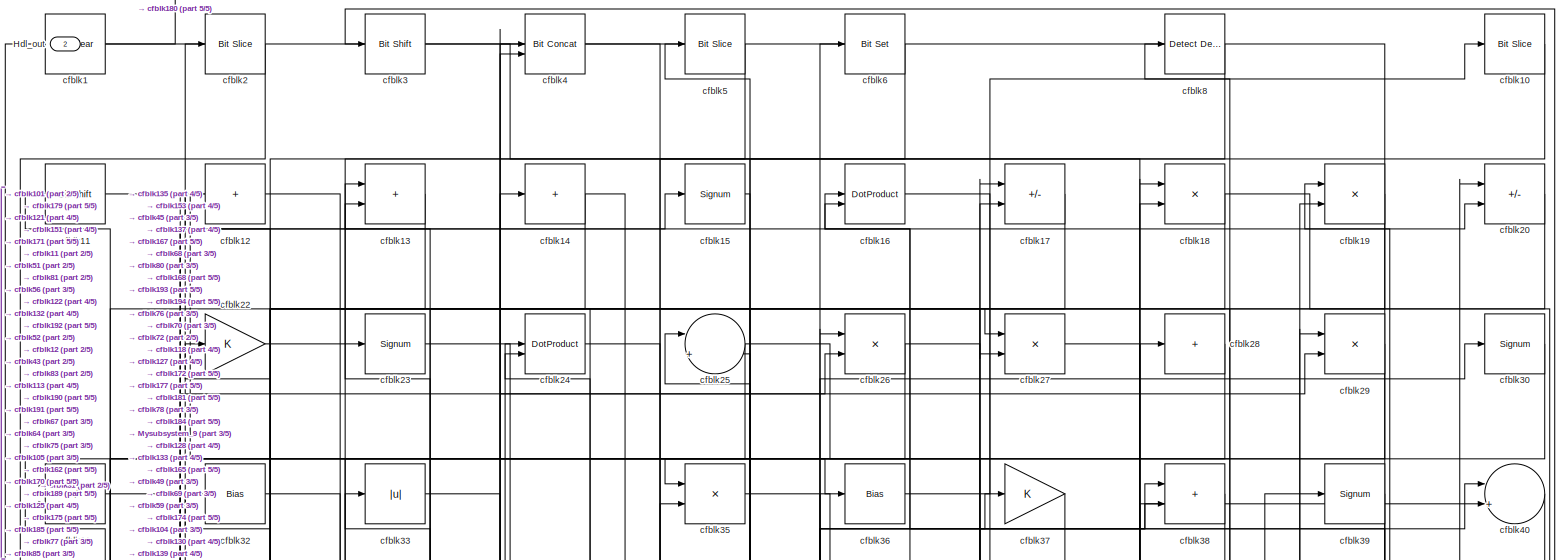
[diagram: root canvas - part 1/5, full width, top band]
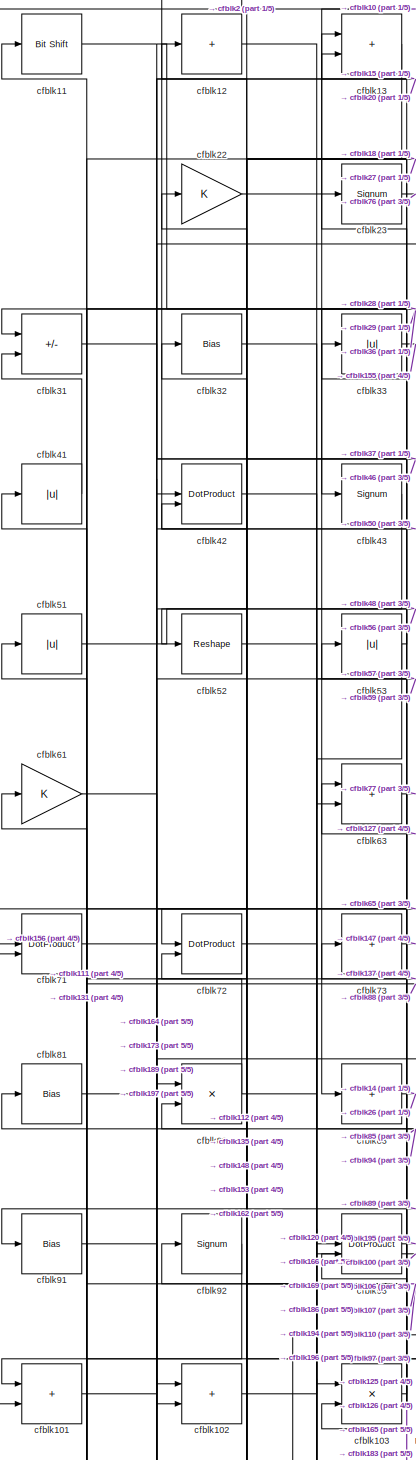
[diagram: root canvas - part 2/5, top left region]
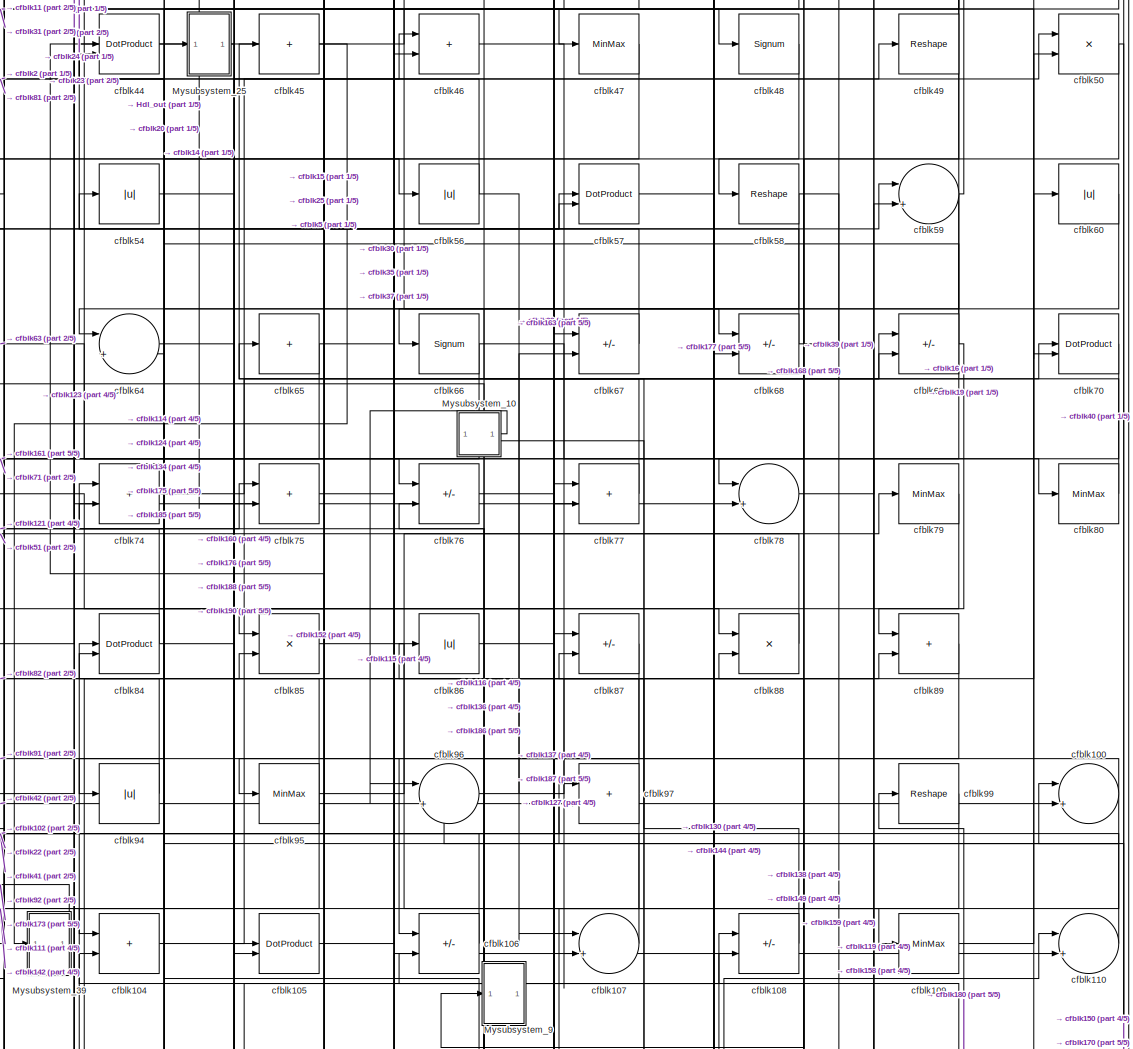
[diagram: root canvas - part 3/5, central region]
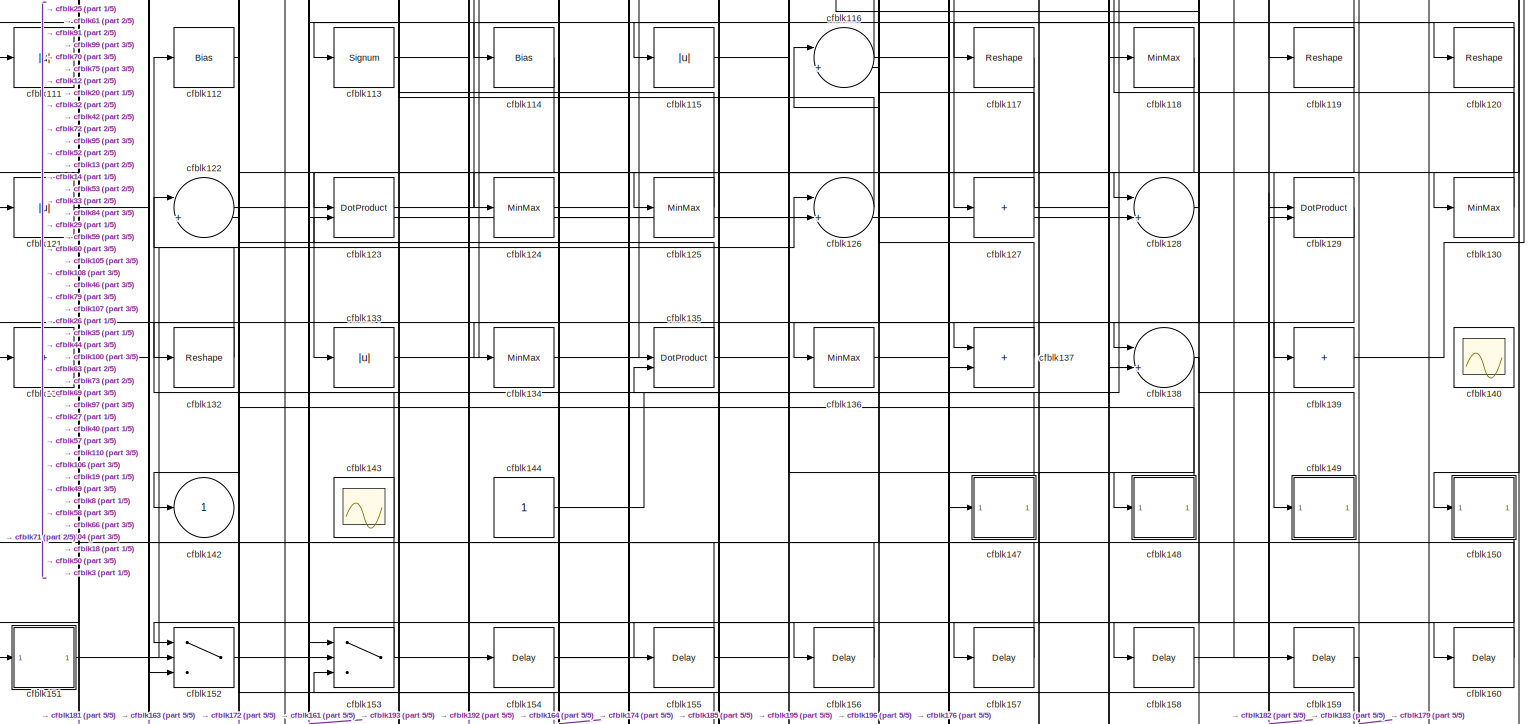
[diagram: root canvas - part 4/5, full width, bottom band]
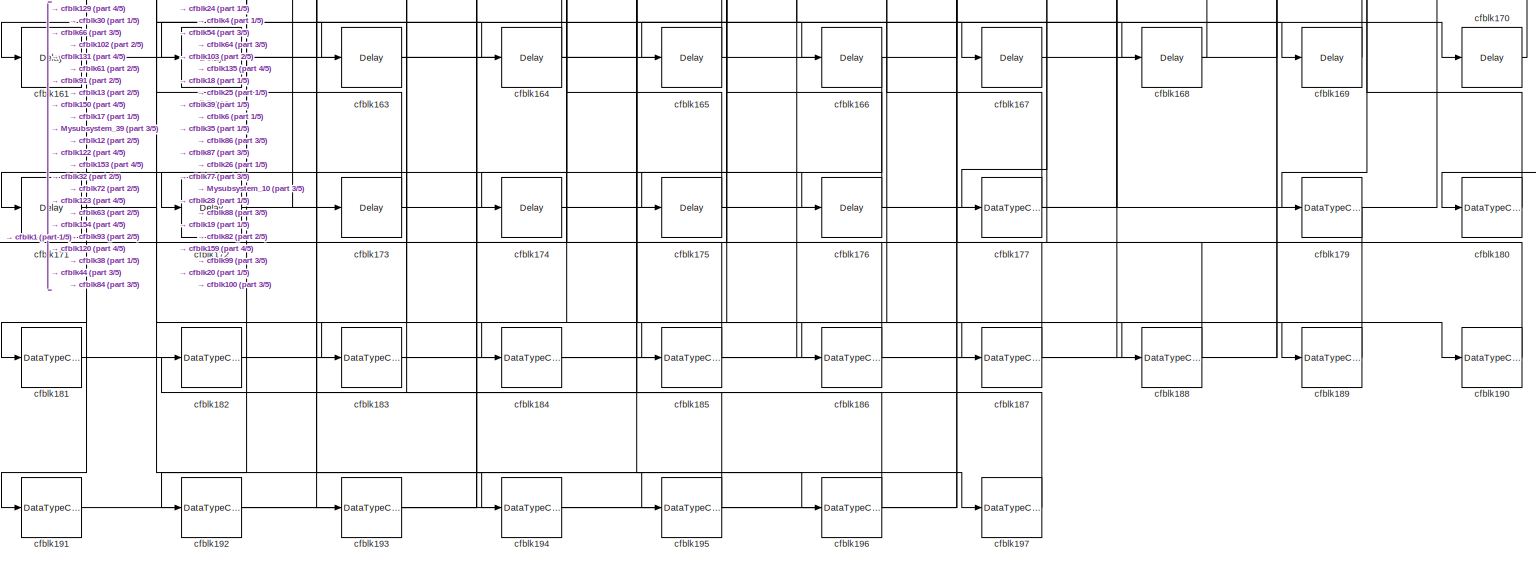
[diagram: root canvas - part 5/5, full width, bottom band]
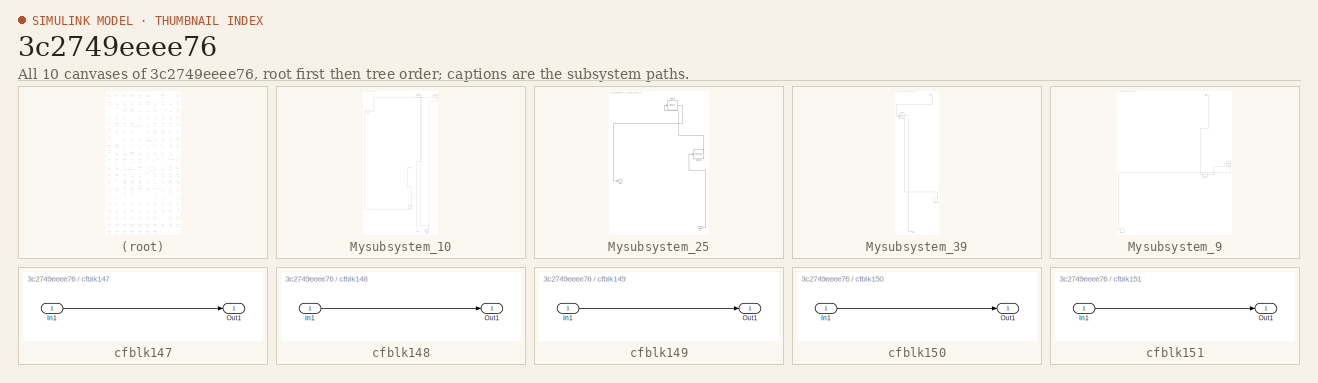
[diagram: thumbnail index - all 10 canvases of the model, root first then tree order]
MODEL slx_3c2749eeee76
KIND model
CONFIG AbsTol = auto
CONFIG EnableMultiTasking = off
CONFIG FixedStep = auto
CONFIG MaxStep = auto
CONFIG MinStep = auto
CONFIG RelTol = 1e-3
CONFIG SampleTimeConstraint = Unconstrained
CONFIG SolverName = VariableStepAuto
CONFIG StartTime = 0.0
CONFIG StopTime = 10.0
BLOCK [Outport] Hdl_out
  OutDataTypeStr = uint8
  Port = 2
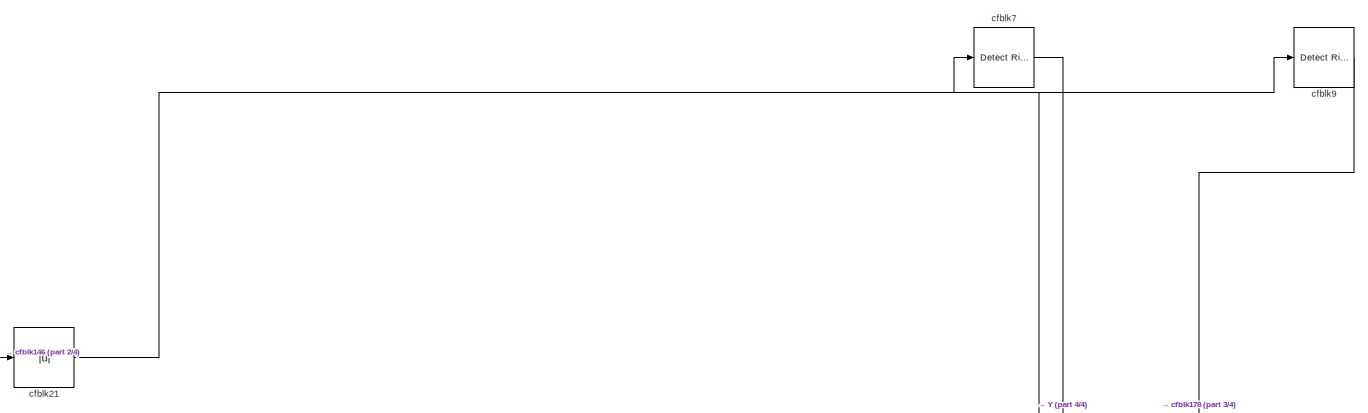
[diagram: Mysubsystem_10 - part 1/4, full width, top band]
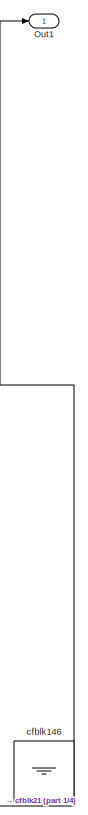
[diagram: Mysubsystem_10 - part 2/4, bottom center region]
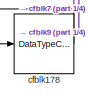
[diagram: Mysubsystem_10 - part 3/4, bottom right region]
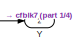
[diagram: Mysubsystem_10 - part 4/4, bottom right region]
BLOCK [SubSystem] Mysubsystem_10
  RTWFcnName = Mysubsystem_10
  RTWFcnNameOpts = User specified
  RTWFileNameOpts = Use function name
  RTWSystemCode = Reusable function
  TreatAsAtomicUnit = on
BLOCK [Outport] Mysubsystem_10/Out1
BLOCK [Outport] Mysubsystem_10/Y
  Port = 2
BLOCK [Ground] Mysubsystem_10/cfblk146
BLOCK [DataTypeConversion] Mysubsystem_10/cfblk178
  OutDataTypeStr = uint8
  RndMeth = Floor
  SaturateOnIntegerOverflow = off
BLOCK [Abs] Mysubsystem_10/cfblk21
  SaturateOnIntegerOverflow = off
BLOCK [Reference] Mysubsystem_10/cfblk7  REF=hdlsllib/Logic and Bit
Operations/Detect Rise
Nonnegative
  SourceBlock = hdlsllib/Logic and Bit\nOperations/Detect Rise\nNonnegative
  SourceType = Detect Rise Nonnegative
BLOCK [Reference] Mysubsystem_10/cfblk9  REF=hdlsllib/Logic and Bit
Operations/Detect Rise
Nonnegative
  SourceBlock = hdlsllib/Logic and Bit\nOperations/Detect Rise\nNonnegative
  SourceType = Detect Rise Nonnegative
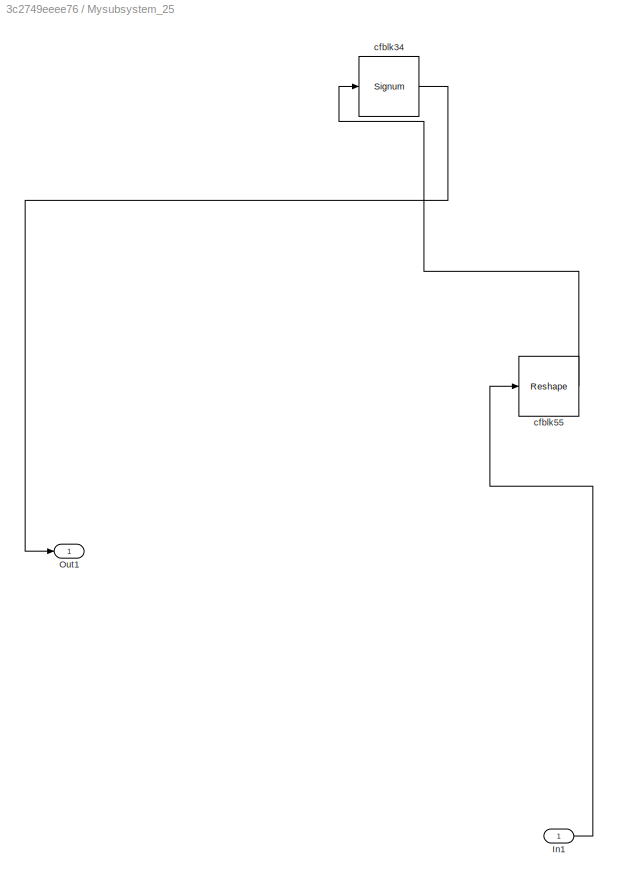
BLOCK [SubSystem] Mysubsystem_25
  RTWFcnName = Mysubsystem_25
  RTWFcnNameOpts = User specified
  RTWFileNameOpts = Use function name
  RTWSystemCode = Reusable function
  TreatAsAtomicUnit = on
BLOCK [Inport] Mysubsystem_25/In1
BLOCK [Outport] Mysubsystem_25/Out1
BLOCK [Signum] Mysubsystem_25/cfblk34
BLOCK [Reshape] Mysubsystem_25/cfblk55
BLOCK [SubSystem] Mysubsystem_39
  RTWFcnName = Mysubsystem_39
  RTWFcnNameOpts = User specified
  RTWFileNameOpts = Use function name
  RTWSystemCode = Reusable function
  TreatAsAtomicUnit = on
BLOCK [Inport] Mysubsystem_39/In1
BLOCK [Outport] Mysubsystem_39/Out1
BLOCK [Constant] Mysubsystem_39/cfblk145
  SampleTime = -1
BLOCK [DotProduct] Mysubsystem_39/cfblk62
  OutDataTypeStr = Inherit: Inherit via internal rule
BLOCK [SubSystem] Mysubsystem_9
  RTWFcnName = Mysubsystem_9
  RTWFcnNameOpts = User specified
  RTWFileNameOpts = Use function name
  RTWSystemCode = Reusable function
  TreatAsAtomicUnit = on
BLOCK [Inport] Mysubsystem_9/In1
BLOCK [Terminator] Mysubsystem_9/cfblk141
BLOCK [Reshape] Mysubsystem_9/cfblk90
BLOCK [Abs] Mysubsystem_9/cfblk98
  SaturateOnIntegerOverflow = off
BLOCK [Reference] cfblk1  REF=simulink/Logic and Bit
Operations/Bit Clear
  LibrarySourceBlock = hdlsllib/Logic and Bit\nOperations/Bit Clear
  SourceBlock = simulink/Logic and Bit\nOperations/Bit Clear
  SourceType = Bit Clear
BLOCK [Reference] cfblk10  REF=hdlsllib/Logic and Bit
Operations/Bit Slice
  SourceBlock = hdlsllib/Logic and Bit\nOperations/Bit Slice
  SourceType = Bit Slice
BLOCK [Sum] cfblk100
  Inputs = |++
  OutDataTypeStr = uint8
BLOCK [Sum] cfblk101
  IconShape = rectangular
  OutDataTypeStr = uint8
BLOCK [Sum] cfblk102
  IconShape = rectangular
  OutDataTypeStr = uint8
BLOCK [Product] cfblk103
  Inputs = */
  OutDataTypeStr = uint8
  RndMeth = Zero
  SaturateOnIntegerOverflow = on
BLOCK [Sum] cfblk104
  IconShape = rectangular
  OutDataTypeStr = uint8
BLOCK [DotProduct] cfblk105
  OutDataTypeStr = uint8
BLOCK [Sum] cfblk106
  IconShape = rectangular
  Inputs = +-
  OutDataTypeStr = uint8
BLOCK [Sum] cfblk107
  Inputs = |++
  OutDataTypeStr = uint8
BLOCK [Sum] cfblk108
  IconShape = rectangular
  Inputs = +-
  OutDataTypeStr = uint8
BLOCK [MinMax] cfblk109
  OutDataTypeStr = uint8
BLOCK [Reference] cfblk11  REF=hdlsllib/Logic and Bit
Operations/Bit Shift
  SourceBlock = hdlsllib/Logic and Bit\nOperations/Bit Shift
  SourceType = Bit Shift
BLOCK [Sum] cfblk110
  Inputs = |++
  OutDataTypeStr = uint8
BLOCK [Abs] cfblk111
  OutDataTypeStr = uint8
  SaturateOnIntegerOverflow = off
BLOCK [Bias] cfblk112
  Bias = 0.0
  SaturateOnIntegerOverflow = off
BLOCK [Signum] cfblk113
BLOCK [Bias] cfblk114
  Bias = 0.0
  SaturateOnIntegerOverflow = off
BLOCK [Abs] cfblk115
  OutDataTypeStr = uint8
  SaturateOnIntegerOverflow = off
BLOCK [Sum] cfblk116
  Inputs = |++
  OutDataTypeStr = uint8
BLOCK [Reshape] cfblk117
BLOCK [MinMax] cfblk118
  OutDataTypeStr = uint8
BLOCK [Reshape] cfblk119
BLOCK [Sum] cfblk12
  IconShape = rectangular
  Inputs = +
  OutDataTypeStr = uint8
BLOCK [Reshape] cfblk120
BLOCK [Abs] cfblk121
  OutDataTypeStr = uint8
  SaturateOnIntegerOverflow = off
BLOCK [Sum] cfblk122
  Inputs = |++
  OutDataTypeStr = uint8
BLOCK [DotProduct] cfblk123
  OutDataTypeStr = uint8
BLOCK [MinMax] cfblk124
  OutDataTypeStr = uint8
BLOCK [MinMax] cfblk125
  OutDataTypeStr = uint8
BLOCK [Sum] cfblk126
  Inputs = |++
  OutDataTypeStr = uint8
BLOCK [Sum] cfblk127
  IconShape = rectangular
  Inputs = +
  OutDataTypeStr = uint8
BLOCK [Sum] cfblk128
  Inputs = |++
  OutDataTypeStr = uint8
BLOCK [DotProduct] cfblk129
  OutDataTypeStr = uint8
BLOCK [Sum] cfblk13
  IconShape = rectangular
  OutDataTypeStr = uint8
BLOCK [MinMax] cfblk130
  OutDataTypeStr = uint8
BLOCK [Sum] cfblk131
  IconShape = rectangular
  Inputs = +
  OutDataTypeStr = uint8
BLOCK [Reshape] cfblk132
BLOCK [Abs] cfblk133
  OutDataTypeStr = uint8
  SaturateOnIntegerOverflow = off
BLOCK [MinMax] cfblk134
  OutDataTypeStr = uint8
BLOCK [DotProduct] cfblk135
  OutDataTypeStr = uint8
BLOCK [MinMax] cfblk136
  OutDataTypeStr = uint8
BLOCK [Sum] cfblk137
  IconShape = rectangular
  OutDataTypeStr = uint8
BLOCK [Sum] cfblk138
  Inputs = |++
  OutDataTypeStr = uint8
BLOCK [Sum] cfblk139
  IconShape = rectangular
  Inputs = +
  OutDataTypeStr = uint8
BLOCK [Sum] cfblk14
  IconShape = rectangular
  Inputs = +
  OutDataTypeStr = uint8
BLOCK [Scope] cfblk140
  Floating = on
  NumInputPorts = 1
  ScopeSpecificationString = Simulink.scopes.TimeScopeBlockCfg('CurrentConfiguration', extmgr.ConfigurationSet(extmgr.Configuration('Core','General UI',true,'FigureColor',[0.156862745098039 0.156862745098039 0.156862745098039]),extmgr.Configuration('Core','Source UI',true),extmgr.Configuration('Sources','WiredSimulink',true,'DataLoggingVariableName','ScopeData1','DataLoggingSaveFormat','StructureWithTime','DataLoggingLimitDat...<+2713ch>
BLOCK [Outport] cfblk142
  OutDataTypeStr = uint8
  VectorParamsAs1DForOutWhenUnconnected = off
BLOCK [Scope] cfblk143
  Floating = on
  NumInputPorts = 1
  ScopeSpecificationString = Simulink.scopes.TimeScopeBlockCfg('CurrentConfiguration', extmgr.ConfigurationSet(extmgr.Configuration('Core','General UI',true,'FigureColor',[0.156862745098039 0.156862745098039 0.156862745098039]),extmgr.Configuration('Core','Source UI',true),extmgr.Configuration('Sources','WiredSimulink',true,'DataLoggingVariableName','ScopeData1','DataLoggingSaveFormat','StructureWithTime','DataLoggingLimitDat...<+2713ch>
BLOCK [Constant] cfblk144
  OutDataTypeStr = uint8
  SampleTime = -1
BLOCK [SubSystem] cfblk147
  LibrarySourceBlock = hdlsllib/Ports &\nSubsystems/Subsystem
BLOCK [Inport] cfblk147/In1
BLOCK [Outport] cfblk147/Out1
BLOCK [SubSystem] cfblk148
  LibrarySourceBlock = hdlsllib/Ports &\nSubsystems/Subsystem
BLOCK [Inport] cfblk148/In1
BLOCK [Outport] cfblk148/Out1
BLOCK [SubSystem] cfblk149
  LibrarySourceBlock = hdlsllib/Ports &\nSubsystems/Subsystem
BLOCK [Inport] cfblk149/In1
BLOCK [Outport] cfblk149/Out1
BLOCK [Signum] cfblk15
BLOCK [SubSystem] cfblk150
  LibrarySourceBlock = hdlsllib/Ports &\nSubsystems/Subsystem
BLOCK [Inport] cfblk150/In1
BLOCK [Outport] cfblk150/Out1
BLOCK [SubSystem] cfblk151
  LibrarySourceBlock = hdlsllib/Ports &\nSubsystems/Subsystem
BLOCK [Inport] cfblk151/In1
BLOCK [Outport] cfblk151/Out1
BLOCK [Switch] cfblk152
  InputSameDT = off
  OutDataTypeStr = uint8
  SaturateOnIntegerOverflow = off
BLOCK [Switch] cfblk153
  InputSameDT = off
  OutDataTypeStr = uint8
  SaturateOnIntegerOverflow = off
BLOCK [Delay] cfblk154
  InputPortMap = u0
  SampleTime = 1
BLOCK [Delay] cfblk155
  InputPortMap = u0
  SampleTime = 1
BLOCK [Delay] cfblk156
  InputPortMap = u0
  SampleTime = 1
BLOCK [Delay] cfblk157
  InputPortMap = u0
  SampleTime = 1
BLOCK [Delay] cfblk158
  InputPortMap = u0
  SampleTime = 1
BLOCK [Delay] cfblk159
  InputPortMap = u0
  SampleTime = 1
BLOCK [DotProduct] cfblk16
  OutDataTypeStr = uint8
BLOCK [Delay] cfblk160
  InputPortMap = u0
  SampleTime = 1
BLOCK [Delay] cfblk161
  InputPortMap = u0
  SampleTime = 1
BLOCK [Delay] cfblk162
  InputPortMap = u0
  SampleTime = 1
BLOCK [Delay] cfblk163
  InputPortMap = u0
  SampleTime = 1
BLOCK [Delay] cfblk164
  InputPortMap = u0
  SampleTime = 1
BLOCK [Delay] cfblk165
  InputPortMap = u0
  SampleTime = 1
BLOCK [Delay] cfblk166
  InputPortMap = u0
  SampleTime = 1
BLOCK [Delay] cfblk167
  InputPortMap = u0
  SampleTime = 1
BLOCK [Delay] cfblk168
  InputPortMap = u0
  SampleTime = 1
BLOCK [Delay] cfblk169
  InputPortMap = u0
  SampleTime = 1
BLOCK [Sum] cfblk17
  IconShape = rectangular
  Inputs = +-
  OutDataTypeStr = uint8
BLOCK [Delay] cfblk170
  InputPortMap = u0
  SampleTime = 1
BLOCK [Delay] cfblk171
  InputPortMap = u0
  SampleTime = 1
BLOCK [Delay] cfblk172
  InputPortMap = u0
  SampleTime = 1
BLOCK [Delay] cfblk173
  InputPortMap = u0
  SampleTime = 1
BLOCK [Delay] cfblk174
  InputPortMap = u0
  SampleTime = 1
BLOCK [Delay] cfblk175
  InputPortMap = u0
  SampleTime = 1
BLOCK [Delay] cfblk176
  InputPortMap = u0
  SampleTime = 1
BLOCK [DataTypeConversion] cfblk177
  OutDataTypeStr = uint8
  RndMeth = Floor
  SaturateOnIntegerOverflow = off
BLOCK [DataTypeConversion] cfblk179
  OutDataTypeStr = uint8
  RndMeth = Floor
  SaturateOnIntegerOverflow = off
BLOCK [Product] cfblk18
  Inputs = */
  OutDataTypeStr = uint8
  RndMeth = Zero
  SaturateOnIntegerOverflow = on
BLOCK [DataTypeConversion] cfblk180
  OutDataTypeStr = uint8
  RndMeth = Floor
  SaturateOnIntegerOverflow = off
BLOCK [DataTypeConversion] cfblk181
  OutDataTypeStr = uint8
  RndMeth = Floor
  SaturateOnIntegerOverflow = off
BLOCK [DataTypeConversion] cfblk182
  OutDataTypeStr = uint8
  RndMeth = Floor
  SaturateOnIntegerOverflow = off
BLOCK [DataTypeConversion] cfblk183
  OutDataTypeStr = uint8
  RndMeth = Floor
  SaturateOnIntegerOverflow = off
BLOCK [DataTypeConversion] cfblk184
  OutDataTypeStr = uint8
  RndMeth = Floor
  SaturateOnIntegerOverflow = off
BLOCK [DataTypeConversion] cfblk185
  OutDataTypeStr = uint8
  RndMeth = Floor
  SaturateOnIntegerOverflow = off
BLOCK [DataTypeConversion] cfblk186
  OutDataTypeStr = uint8
  RndMeth = Floor
  SaturateOnIntegerOverflow = off
BLOCK [DataTypeConversion] cfblk187
  OutDataTypeStr = uint8
  RndMeth = Floor
  SaturateOnIntegerOverflow = off
BLOCK [DataTypeConversion] cfblk188
  OutDataTypeStr = uint8
  RndMeth = Floor
  SaturateOnIntegerOverflow = off
BLOCK [DataTypeConversion] cfblk189
  OutDataTypeStr = uint8
  RndMeth = Floor
  SaturateOnIntegerOverflow = off
BLOCK [Product] cfblk19
  Inputs = */
  OutDataTypeStr = uint8
  RndMeth = Zero
  SaturateOnIntegerOverflow = on
BLOCK [DataTypeConversion] cfblk190
  OutDataTypeStr = uint8
  RndMeth = Floor
  SaturateOnIntegerOverflow = off
BLOCK [DataTypeConversion] cfblk191
  OutDataTypeStr = uint8
  RndMeth = Floor
  SaturateOnIntegerOverflow = off
BLOCK [DataTypeConversion] cfblk192
  OutDataTypeStr = uint8
  RndMeth = Floor
  SaturateOnIntegerOverflow = off
BLOCK [DataTypeConversion] cfblk193
  OutDataTypeStr = uint8
  RndMeth = Floor
  SaturateOnIntegerOverflow = off
BLOCK [DataTypeConversion] cfblk194
  OutDataTypeStr = uint8
  RndMeth = Floor
  SaturateOnIntegerOverflow = off
BLOCK [DataTypeConversion] cfblk195
  OutDataTypeStr = uint8
  RndMeth = Floor
  SaturateOnIntegerOverflow = off
BLOCK [DataTypeConversion] cfblk196
  OutDataTypeStr = uint8
  RndMeth = Floor
  SaturateOnIntegerOverflow = off
BLOCK [DataTypeConversion] cfblk197
  OutDataTypeStr = uint8
  RndMeth = Floor
  SaturateOnIntegerOverflow = off
BLOCK [Reference] cfblk2  REF=hdlsllib/Logic and Bit
Operations/Bit Slice
  SourceBlock = hdlsllib/Logic and Bit\nOperations/Bit Slice
  SourceType = Bit Slice
BLOCK [Sum] cfblk20
  IconShape = rectangular
  Inputs = +-
  OutDataTypeStr = uint8
BLOCK [Gain] cfblk22
  OutDataTypeStr = uint8
BLOCK [Signum] cfblk23
BLOCK [DotProduct] cfblk24
  OutDataTypeStr = uint8
BLOCK [Sum] cfblk25
  Inputs = |++
  OutDataTypeStr = uint8
BLOCK [Product] cfblk26
  Inputs = */
  OutDataTypeStr = uint8
  RndMeth = Zero
  SaturateOnIntegerOverflow = on
BLOCK [Product] cfblk27
  Inputs = */
  OutDataTypeStr = uint8
  RndMeth = Zero
  SaturateOnIntegerOverflow = on
BLOCK [Sum] cfblk28
  IconShape = rectangular
  Inputs = +
  OutDataTypeStr = uint8
BLOCK [Product] cfblk29
  Inputs = */
  OutDataTypeStr = uint8
  RndMeth = Zero
  SaturateOnIntegerOverflow = on
BLOCK [Reference] cfblk3  REF=hdlsllib/Logic and Bit
Operations/Bit Shift
  SourceBlock = hdlsllib/Logic and Bit\nOperations/Bit Shift
  SourceType = Bit Shift
BLOCK [Signum] cfblk30
BLOCK [Sum] cfblk31
  IconShape = rectangular
  Inputs = +-
  OutDataTypeStr = uint8
BLOCK [Bias] cfblk32
  Bias = 0.0
  SaturateOnIntegerOverflow = off
BLOCK [Abs] cfblk33
  OutDataTypeStr = uint8
  SaturateOnIntegerOverflow = off
BLOCK [Product] cfblk35
  Inputs = */
  OutDataTypeStr = uint8
  RndMeth = Zero
  SaturateOnIntegerOverflow = on
BLOCK [Bias] cfblk36
  Bias = 0.0
  SaturateOnIntegerOverflow = off
BLOCK [Gain] cfblk37
  OutDataTypeStr = uint8
BLOCK [Sum] cfblk38
  IconShape = rectangular
  OutDataTypeStr = uint8
BLOCK [Signum] cfblk39
BLOCK [Reference] cfblk4  REF=hdlsllib/Logic and Bit
Operations/Bit Concat
  SourceBlock = hdlsllib/Logic and Bit\nOperations/Bit Concat
  SourceType = Bit Concat
BLOCK [Sum] cfblk40
  Inputs = |++
  OutDataTypeStr = uint8
BLOCK [Abs] cfblk41
  OutDataTypeStr = uint8
  SaturateOnIntegerOverflow = off
BLOCK [DotProduct] cfblk42
  OutDataTypeStr = uint8
BLOCK [Signum] cfblk43
BLOCK [DotProduct] cfblk44
  OutDataTypeStr = uint8
BLOCK [Sum] cfblk45
  IconShape = rectangular
  Inputs = +
  OutDataTypeStr = uint8
BLOCK [Sum] cfblk46
  IconShape = rectangular
  OutDataTypeStr = uint8
BLOCK [MinMax] cfblk47
  OutDataTypeStr = uint8
BLOCK [Signum] cfblk48
BLOCK [Reshape] cfblk49
BLOCK [Reference] cfblk5  REF=hdlsllib/Logic and Bit
Operations/Bit Slice
  SourceBlock = hdlsllib/Logic and Bit\nOperations/Bit Slice
  SourceType = Bit Slice
BLOCK [Product] cfblk50
  Inputs = */
  OutDataTypeStr = uint8
  RndMeth = Zero
  SaturateOnIntegerOverflow = on
BLOCK [Abs] cfblk51
  OutDataTypeStr = uint8
  SaturateOnIntegerOverflow = off
BLOCK [Reshape] cfblk52
BLOCK [Abs] cfblk53
  OutDataTypeStr = uint8
  SaturateOnIntegerOverflow = off
BLOCK [Abs] cfblk54
  OutDataTypeStr = uint8
  SaturateOnIntegerOverflow = off
BLOCK [Abs] cfblk56
  OutDataTypeStr = uint8
  SaturateOnIntegerOverflow = off
BLOCK [DotProduct] cfblk57
  OutDataTypeStr = uint8
BLOCK [Reshape] cfblk58
BLOCK [Sum] cfblk59
  Inputs = |++
  OutDataTypeStr = uint8
BLOCK [Reference] cfblk6  REF=simulink/Logic and Bit
Operations/Bit Set
  LibrarySourceBlock = hdlsllib/Logic and Bit\nOperations/Bit Set
  SourceBlock = simulink/Logic and Bit\nOperations/Bit Set
  SourceType = Bit Set
BLOCK [Abs] cfblk60
  OutDataTypeStr = uint8
  SaturateOnIntegerOverflow = off
BLOCK [Gain] cfblk61
  OutDataTypeStr = uint8
BLOCK [Sum] cfblk63
  IconShape = rectangular
  OutDataTypeStr = uint8
BLOCK [Sum] cfblk64
  Inputs = |++
  OutDataTypeStr = uint8
BLOCK [Sum] cfblk65
  IconShape = rectangular
  Inputs = +
  OutDataTypeStr = uint8
BLOCK [Signum] cfblk66
BLOCK [Sum] cfblk67
  IconShape = rectangular
  Inputs = +-
  OutDataTypeStr = uint8
BLOCK [Sum] cfblk68
  IconShape = rectangular
  Inputs = +-
  OutDataTypeStr = uint8
BLOCK [Sum] cfblk69
  IconShape = rectangular
  Inputs = +-
  OutDataTypeStr = uint8
BLOCK [DotProduct] cfblk70
  OutDataTypeStr = uint8
BLOCK [DotProduct] cfblk71
  OutDataTypeStr = uint8
BLOCK [DotProduct] cfblk72
  OutDataTypeStr = uint8
BLOCK [Sum] cfblk73
  IconShape = rectangular
  Inputs = +
  OutDataTypeStr = uint8
BLOCK [Sum] cfblk74
  IconShape = rectangular
  OutDataTypeStr = uint8
BLOCK [Sum] cfblk75
  IconShape = rectangular
  OutDataTypeStr = uint8
BLOCK [Sum] cfblk76
  IconShape = rectangular
  Inputs = +-
  OutDataTypeStr = uint8
BLOCK [Sum] cfblk77
  IconShape = rectangular
  OutDataTypeStr = uint8
BLOCK [Sum] cfblk78
  Inputs = |++
  OutDataTypeStr = uint8
BLOCK [MinMax] cfblk79
  OutDataTypeStr = uint8
BLOCK [Reference] cfblk8  REF=simulink/Logic and Bit
Operations/Detect
Decrease
  LibrarySourceBlock = hdlsllib/Logic and Bit\nOperations/Detect\nDecrease
  SourceBlock = simulink/Logic and Bit\nOperations/Detect\nDecrease
  SourceType = Detect Decrease
BLOCK [MinMax] cfblk80
  OutDataTypeStr = uint8
BLOCK [Bias] cfblk81
  Bias = 0.0
  SaturateOnIntegerOverflow = off
BLOCK [Product] cfblk82
  Inputs = */
  OutDataTypeStr = uint8
  RndMeth = Zero
  SaturateOnIntegerOverflow = on
BLOCK [Sum] cfblk83
  IconShape = rectangular
  Inputs = +
  OutDataTypeStr = uint8
BLOCK [DotProduct] cfblk84
  OutDataTypeStr = uint8
BLOCK [Product] cfblk85
  Inputs = */
  OutDataTypeStr = uint8
  RndMeth = Zero
  SaturateOnIntegerOverflow = on
BLOCK [Abs] cfblk86
  OutDataTypeStr = uint8
  SaturateOnIntegerOverflow = off
BLOCK [Sum] cfblk87
  IconShape = rectangular
  Inputs = +-
  OutDataTypeStr = uint8
BLOCK [Product] cfblk88
  Inputs = */
  OutDataTypeStr = uint8
  RndMeth = Zero
  SaturateOnIntegerOverflow = on
BLOCK [Sum] cfblk89
  IconShape = rectangular
  OutDataTypeStr = uint8
BLOCK [Bias] cfblk91
  Bias = 0.0
  SaturateOnIntegerOverflow = off
BLOCK [Signum] cfblk92
BLOCK [DotProduct] cfblk93
  OutDataTypeStr = uint8
BLOCK [Abs] cfblk94
  OutDataTypeStr = uint8
  SaturateOnIntegerOverflow = off
BLOCK [MinMax] cfblk95
  OutDataTypeStr = uint8
BLOCK [Sum] cfblk96
  Inputs = |++
  OutDataTypeStr = uint8
BLOCK [Sum] cfblk97
  IconShape = rectangular
  OutDataTypeStr = uint8
BLOCK [Reshape] cfblk99
NET Mysubsystem_10/cfblk146:1 -> Mysubsystem_10/Out1:1, Mysubsystem_10/cfblk21:1
LINE Mysubsystem_10/cfblk178:1 -> Mysubsystem_10/cfblk7:1
LINE Mysubsystem_10/cfblk21:1 -> Mysubsystem_10/cfblk9:1
LINE Mysubsystem_10/cfblk7:1 -> Mysubsystem_10/Y:1
LINE Mysubsystem_10/cfblk9:1 -> Mysubsystem_10/cfblk178:1
LINE Mysubsystem_10:1 -> cfblk96:1
LINE Mysubsystem_10:2 -> cfblk177:1
LINE Mysubsystem_25/In1:1 -> Mysubsystem_25/cfblk55:1
LINE Mysubsystem_25/cfblk34:1 -> Mysubsystem_25/Out1:1
LINE Mysubsystem_25/cfblk55:1 -> Mysubsystem_25/cfblk34:1
LINE Mysubsystem_25:1 -> Mysubsystem_39:1
LINE Mysubsystem_39/In1:1 -> Mysubsystem_39/cfblk62:2
LINE Mysubsystem_39/cfblk145:1 -> Mysubsystem_39/cfblk62:1
LINE Mysubsystem_39/cfblk62:1 -> Mysubsystem_39/Out1:1
LINE Mysubsystem_39:1 -> cfblk173:1
LINE Mysubsystem_9/In1:1 -> Mysubsystem_9/cfblk98:1
LINE Mysubsystem_9/cfblk90:1 -> Mysubsystem_9/cfblk141:1
LINE Mysubsystem_9/cfblk98:1 -> Mysubsystem_9/cfblk90:1
NET cfblk100:1 -> cfblk116:2, cfblk95:1, cfblk96:2, cfblk97:2
LINE cfblk101:1 -> cfblk20:2
LINE cfblk102:1 -> cfblk97:1
LINE cfblk103:1 -> cfblk33:1
NET cfblk104:1 -> cfblk57:2, cfblk70:1
LINE cfblk105:1 -> cfblk38:2
LINE cfblk106:1 -> cfblk22:1
LINE cfblk107:1 -> cfblk92:1
LINE cfblk108:1 -> cfblk45:1
LINE cfblk109:1 -> cfblk50:2
LINE cfblk10:1 -> cfblk43:1
NET cfblk110:1 -> cfblk41:1, cfblk74:2
LINE cfblk111:1 -> cfblk61:1
LINE cfblk112:1 -> cfblk12:1
LINE cfblk113:1 -> cfblk126:2
LINE cfblk114:1 -> cfblk152:1
NET cfblk115:1 -> cfblk107:2, cfblk128:1
NET cfblk116:1 -> cfblk139:1, cfblk44:1
LINE cfblk117:1 -> cfblk133:1
LINE cfblk118:1 -> cfblk123:1
NET cfblk119:1 -> cfblk104:2, cfblk149:1
NET cfblk11:1 -> cfblk36:1, cfblk46:2
NET cfblk120:1 -> cfblk117:1, cfblk174:1
LINE cfblk121:1 -> cfblk75:1
LINE cfblk122:1 -> cfblk193:1
LINE cfblk123:1 -> cfblk84:1
LINE cfblk124:1 -> cfblk156:1
LINE cfblk125:1 -> cfblk13:2
LINE cfblk126:1 -> cfblk53:1
NET cfblk127:1 -> cfblk40:2, cfblk63:1
LINE cfblk128:1 -> cfblk8:1
LINE cfblk129:1 -> cfblk181:1
NET cfblk12:1 -> cfblk166:1, cfblk27:2
LINE cfblk130:1 -> cfblk108:2
LINE cfblk131:1 -> cfblk163:1
LINE cfblk132:1 -> cfblk122:1
LINE cfblk133:1 -> cfblk29:1
NET cfblk134:1 -> cfblk108:1, cfblk46:1
NET cfblk135:1 -> cfblk148:1, cfblk32:1, cfblk40:1
LINE cfblk136:1 -> cfblk160:1
LINE cfblk137:1 -> cfblk73:1
NET cfblk138:1 -> cfblk157:1, cfblk158:1
LINE cfblk139:1 -> cfblk3:1
LINE cfblk13:1 -> cfblk162:1
LINE cfblk144:1 -> cfblk110:1
LINE cfblk147/In1:1 -> cfblk147/Out1:1
LINE cfblk147:1 -> cfblk112:1
LINE cfblk148/In1:1 -> cfblk148/Out1:1
LINE cfblk148:1 -> cfblk42:2
LINE cfblk149/In1:1 -> cfblk149/Out1:1
LINE cfblk149:1 -> cfblk106:2
NET cfblk14:1 -> cfblk113:1, cfblk75:2
LINE cfblk150/In1:1 -> cfblk150/Out1:1
LINE cfblk150:1 -> cfblk172:1
LINE cfblk151/In1:1 -> cfblk151/Out1:1
LINE cfblk151:1 -> cfblk126:1
LINE cfblk152:1 -> cfblk128:2
NET cfblk153:1 -> cfblk26:1, cfblk72:2
LINE cfblk154:1 -> cfblk196:1
LINE cfblk155:1 -> cfblk42:1
LINE cfblk156:1 -> cfblk71:1
LINE cfblk157:1 -> cfblk116:1
LINE cfblk158:1 -> cfblk59:2
LINE cfblk159:1 -> cfblk179:1
LINE cfblk15:1 -> cfblk85:1
LINE cfblk160:1 -> cfblk105:1
LINE cfblk161:1 -> cfblk153:1
LINE cfblk162:1 -> cfblk35:2
LINE cfblk163:1 -> cfblk77:1
LINE cfblk164:1 -> cfblk153:3
LINE cfblk165:1 -> cfblk103:2
LINE cfblk166:1 -> cfblk191:1
LINE cfblk167:1 -> cfblk19:2
LINE cfblk168:1 -> cfblk88:2
LINE cfblk169:1 -> cfblk82:2
LINE cfblk16:1 -> cfblk70:2
LINE cfblk170:1 -> cfblk100:1
LINE cfblk171:1 -> cfblk187:1
LINE cfblk172:1 -> cfblk18:2
LINE cfblk173:1 -> cfblk102:1
LINE cfblk174:1 -> cfblk20:1
LINE cfblk175:1 -> cfblk44:2
LINE cfblk176:1 -> cfblk135:2
NET cfblk177:1 -> cfblk28:1, cfblk86:1
LINE cfblk179:1 -> cfblk1:1
LINE cfblk17:1 -> cfblk192:1
LINE cfblk180:1 -> cfblk99:1
LINE cfblk181:1 -> cfblk18:1
LINE cfblk182:1 -> cfblk129:1
LINE cfblk183:1 -> cfblk129:2
LINE cfblk184:1 -> cfblk6:1
NET cfblk185:1 -> cfblk123:2, cfblk84:2
NET cfblk186:1 -> cfblk103:1, cfblk54:1
LINE cfblk187:1 -> cfblk87:1
LINE cfblk188:1 -> cfblk87:2
NET cfblk189:1 -> cfblk25:2, cfblk82:1
NET cfblk18:1 -> cfblk125:1, cfblk130:1, cfblk175:1, cfblk27:1, cfblk52:1
LINE cfblk190:1 -> cfblk4:1
LINE cfblk191:1 -> cfblk4:2
LINE cfblk192:1 -> cfblk154:1
LINE cfblk193:1 -> cfblk17:1
LINE cfblk194:1 -> cfblk17:2
NET cfblk195:1 -> cfblk135:1, cfblk182:1
LINE cfblk196:1 -> cfblk93:1
LINE cfblk197:1 -> cfblk93:2
NET cfblk19:1 -> Mysubsystem_9:1, cfblk151:1
LINE cfblk1:1 -> cfblk180:1
NET cfblk20:1 -> cfblk122:2, cfblk64:1
LINE cfblk22:1 -> cfblk13:1
LINE cfblk23:1 -> cfblk76:1
LINE cfblk24:1 -> cfblk170:1
NET cfblk25:1 -> cfblk121:1, cfblk67:1
NET cfblk26:1 -> cfblk168:1, cfblk35:1
LINE cfblk27:1 -> cfblk118:1
LINE cfblk28:1 -> cfblk31:1
LINE cfblk29:1 -> cfblk83:1
LINE cfblk2:1 -> cfblk101:2
LINE cfblk30:1 -> cfblk171:1
LINE cfblk31:1 -> cfblk48:1
LINE cfblk32:1 -> cfblk194:1
NET cfblk33:1 -> cfblk155:1, cfblk88:1
NET cfblk35:1 -> cfblk137:1, cfblk167:1, cfblk68:1
LINE cfblk36:1 -> cfblk10:1
LINE cfblk37:1 -> cfblk72:1
LINE cfblk38:1 -> cfblk184:1
LINE cfblk39:1 -> cfblk165:1
NET cfblk3:1 -> cfblk68:2, cfblk78:2
LINE cfblk40:1 -> cfblk104:1
LINE cfblk41:1 -> cfblk31:2
LINE cfblk42:1 -> cfblk100:2
LINE cfblk43:1 -> cfblk102:2
LINE cfblk44:1 -> cfblk188:1
NET cfblk45:1 -> cfblk37:1, cfblk47:1
LINE cfblk46:1 -> cfblk110:2
LINE cfblk47:1 -> cfblk94:1
LINE cfblk48:1 -> cfblk63:2
NET cfblk49:1 -> cfblk138:1, cfblk16:2, cfblk58:1
LINE cfblk4:1 -> cfblk189:1
NET cfblk50:1 -> cfblk150:1, cfblk78:1
NET cfblk51:1 -> cfblk29:2, cfblk56:1
LINE cfblk52:1 -> cfblk120:1
NET cfblk53:1 -> cfblk153:2, cfblk23:1
LINE cfblk54:1 -> cfblk176:1
NET cfblk56:1 -> cfblk107:1, cfblk2:1
LINE cfblk57:1 -> cfblk138:2
NET cfblk58:1 -> cfblk136:1, cfblk159:1, cfblk66:1
NET cfblk59:1 -> cfblk124:1, cfblk19:1
LINE cfblk5:1 -> cfblk105:2
NET cfblk60:1 -> cfblk114:1, cfblk134:1
LINE cfblk61:1 -> cfblk197:1
NET cfblk63:1 -> cfblk183:1, cfblk77:2
LINE cfblk64:1 -> cfblk190:1
NET cfblk65:1 -> cfblk69:2, cfblk71:2
NET cfblk66:1 -> cfblk119:1, cfblk161:1
LINE cfblk67:1 -> cfblk24:1
NET cfblk68:1 -> cfblk39:1, cfblk5:1
NET cfblk69:1 -> Hdl_out:1, cfblk137:2, cfblk24:2, cfblk89:1
LINE cfblk6:1 -> cfblk185:1
LINE cfblk70:1 -> cfblk152:2
LINE cfblk71:1 -> cfblk59:1
LINE cfblk72:1 -> cfblk169:1
LINE cfblk73:1 -> cfblk147:1
LINE cfblk74:1 -> cfblk49:1
LINE cfblk75:1 -> cfblk30:1
LINE cfblk76:1 -> cfblk38:1
NET cfblk77:1 -> cfblk25:1, cfblk65:1
LINE cfblk78:1 -> cfblk80:1
NET cfblk79:1 -> cfblk115:1, cfblk152:3
LINE cfblk80:1 -> cfblk16:1
NET cfblk81:1 -> cfblk15:1, cfblk50:1
NET cfblk82:1 -> cfblk11:1, cfblk57:1, cfblk85:2
NET cfblk83:1 -> cfblk14:1, cfblk26:2
NET cfblk84:1 -> cfblk74:1, cfblk89:2
NET cfblk85:1 -> Mysubsystem_25:1, cfblk109:1
LINE cfblk86:1 -> cfblk69:1
LINE cfblk87:1 -> cfblk186:1
LINE cfblk88:1 -> cfblk51:1
NET cfblk89:1 -> cfblk106:1, cfblk91:1
LINE cfblk8:1 -> cfblk132:1
NET cfblk91:1 -> cfblk131:1, cfblk164:1
LINE cfblk92:1 -> cfblk101:1
LINE cfblk93:1 -> cfblk195:1
LINE cfblk94:1 -> cfblk81:1
NET cfblk95:1 -> cfblk142:1, cfblk64:2, cfblk79:1
NET cfblk96:1 -> cfblk60:1, cfblk67:2
NET cfblk97:1 -> cfblk127:1, cfblk76:2
LINE cfblk99:1 -> cfblk111:1
note: NET lines group one-source signal fan-out (src -> all destinations, sorted); 1:1 wires keep LINE
